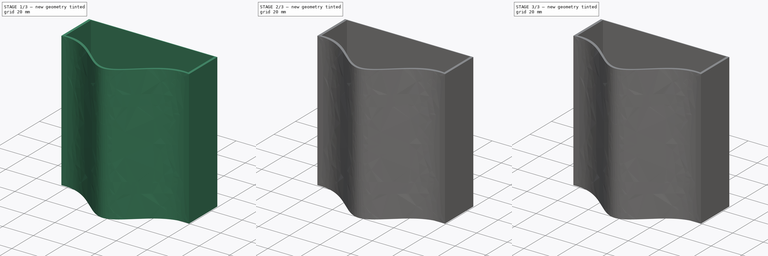
[diagram: build sequence overview — one tinted view per stage of 3, left to right]
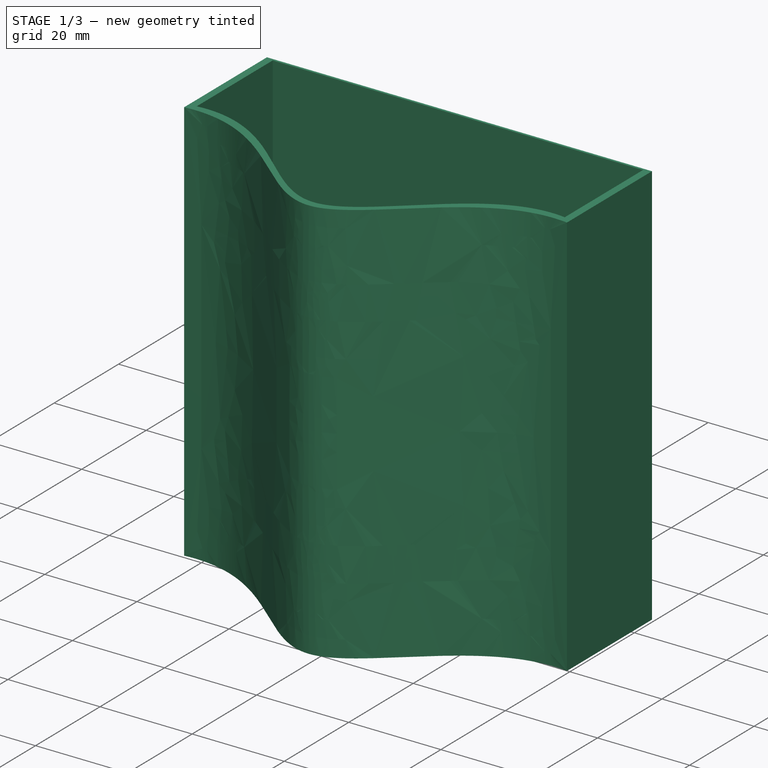
[diagram: stage 1 of 3 — iso view after this stage's code; geometry added in this stage tinted green]
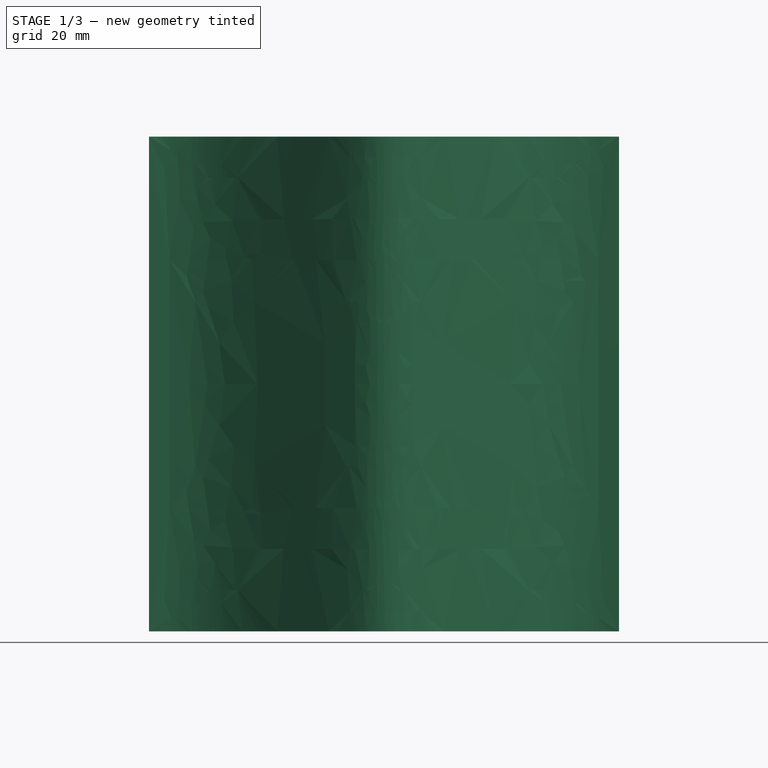
[diagram: stage 1 of 3 — front view after this stage's code; geometry added in this stage tinted green]
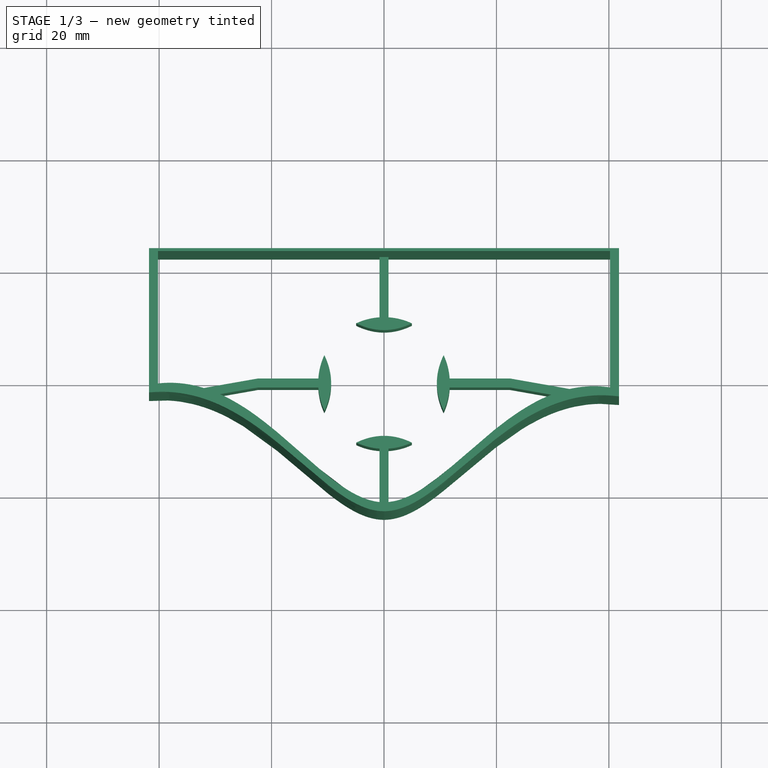
[diagram: stage 1 of 3 — top view after this stage's code; geometry added in this stage tinted green]
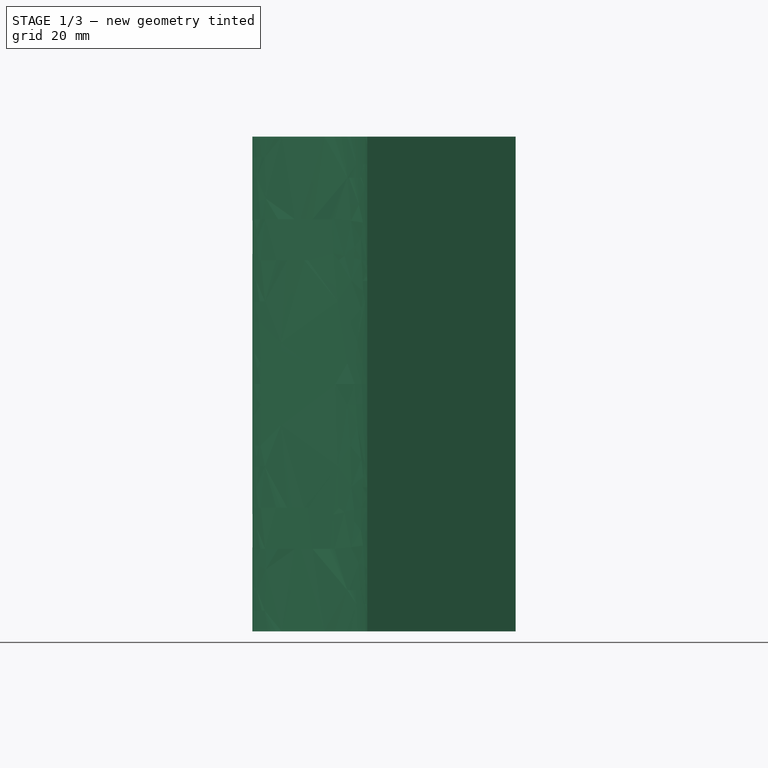
[diagram: stage 1 of 3 — right view after this stage's code; geometry added in this stage tinted green]
FCSTD DOCUMENT  (FreeCAD 0.19R0.19.2)
Label: boatMoterHolder026
License: All rights reserved
LicenseURL: http://en.wikipedia.org/wiki/All_rights_reserved
objects: Part::Chamfer×4, Sketcher::SketchObject×3, Part::Extrusion×3
note: 10 computed .brp shape members not serialized (recipe doc carries the construction recipe); baked Part::Feature solids carry a one-line shape summary decoded from their .brp

FEATURE [Sketcher::SketchObject] Sketch001
  FullyConstrained = true
  sketch-geometry (48):
    g0: ArcOfCircle CenterX=0 CenterY=0 CenterZ=0 NormalX=0 NormalY=0 NormalZ=1 AngleXU=0 Radius=11.7047 StartAngle=1.13417 EndAngle=1.50239
    g1: ArcOfCircle CenterX=0 CenterY=0 CenterZ=0 NormalX=0 NormalY=0 NormalZ=1 AngleXU=0 Radius=11.7047 StartAngle=5.84584 EndAngle=6.21478
    g2: ArcOfCircle CenterX=0 CenterY=0 CenterZ=0 NormalX=0 NormalY=0 NormalZ=1 AngleXU=0 Radius=11.7047 StartAngle=4.27663 EndAngle=4.64399
    g3: ArcOfCircle CenterX=0 CenterY=0 CenterZ=0 NormalX=0 NormalY=0 NormalZ=1 AngleXU=0 Radius=11.7047 StartAngle=2.70497 EndAngle=3.07319
    g4: LineSegment StartX=22.4 StartY=-0.8 StartZ=0 EndX=11.6773 EndY=-0.8 EndZ=0
    g5: LineSegment StartX=22.4 StartY=0.8 StartZ=0 EndX=11.6773 EndY=0.8 EndZ=0
    g6: LineSegment StartX=0.8 StartY=22.4 StartZ=0 EndX=0.8 EndY=11.6773 EndZ=0
    g7: LineSegment StartX=-0.8 StartY=22.4 StartZ=0 EndX=-0.8 EndY=11.6773 EndZ=0
    g8: LineSegment StartX=-22.4 StartY=0.8 StartZ=0 EndX=-11.6773 EndY=0.8 EndZ=0
    g9: LineSegment StartX=-22.4 StartY=-0.8 StartZ=0 EndX=-11.6773 EndY=-0.8 EndZ=0
    g10: ArcOfCircle CenterX=0 CenterY=0 CenterZ=0 NormalX=0 NormalY=0 NormalZ=1 AngleXU=0 Radius=11.7047 StartAngle=3.20999 EndAngle=3.57822
    g11: ArcOfCircle CenterX=0 CenterY=0 CenterZ=0 NormalX=0 NormalY=0 NormalZ=1 AngleXU=0 Radius=11.7047 StartAngle=1.6392 EndAngle=2.00742
    g12: ArcOfCircle CenterX=0 CenterY=0 CenterZ=0 NormalX=0 NormalY=0 NormalZ=1 AngleXU=0 Radius=11.7047 StartAngle=0.0684019 EndAngle=0.436627
    g13: LineSegment StartX=-0.8 StartY=22.4 StartZ=0 EndX=0.8 EndY=22.4 EndZ=0
    g14: LineSegment StartX=0.8 StartY=-22.4 StartZ=0 EndX=0.8 EndY=-11.6773 EndZ=0
    g15: LineSegment StartX=-0.8 StartY=-22.4 StartZ=0 EndX=-0.8 EndY=-11.6773 EndZ=0
    g16: LineSegment StartX=-0.8 StartY=-22.4 StartZ=0 EndX=0.8 EndY=-22.4 EndZ=0
    g17: ArcOfCircle CenterX=0 CenterY=0 CenterZ=0 NormalX=0 NormalY=0 NormalZ=1 AngleXU=0 Radius=11.7047 StartAngle=4.78079 EndAngle=5.14902
    g18: Circle CenterX=-10.6066 CenterY=4.94975 CenterZ=0 NormalX=0 NormalY=0 NormalZ=1 AngleXU=0 Radius=1
    g19: Circle CenterX=-8.2 CenterY=0 CenterZ=0 NormalX=0 NormalY=0 NormalZ=1 AngleXU=0 Radius=1
    g20: Circle CenterX=-10.6066 CenterY=-4.94974 CenterZ=0 NormalX=0 NormalY=0 NormalZ=1 AngleXU=0 Radius=1
    g21: BSplineCurve PolesCount=3 KnotsCount=2 Degree=2 IsPeriodic=0
    g22: GeomPoint X=-10.6066 Y=4.94975 Z=0
    g23: GeomPoint X=-10.6066 Y=-4.94974 Z=0
    g24: Circle CenterX=-4.94974 CenterY=10.6066 CenterZ=0 NormalX=0 NormalY=0 NormalZ=1 AngleXU=0 Radius=1
    g25: Circle CenterX=0 CenterY=8.2 CenterZ=0 NormalX=0 NormalY=0 NormalZ=1 AngleXU=0 Radius=1
    g26: Circle CenterX=4.94975 CenterY=10.6066 CenterZ=0 NormalX=0 NormalY=0 NormalZ=1 AngleXU=0 Radius=1
    g27: BSplineCurve PolesCount=3 KnotsCount=2 Degree=2 IsPeriodic=0
    g28: GeomPoint X=-4.94974 Y=10.6066 Z=0
    g29: GeomPoint X=4.94975 Y=10.6066 Z=0
    g30: Circle CenterX=10.6066 CenterY=4.94975 CenterZ=0 NormalX=0 NormalY=0 NormalZ=1 AngleXU=0 Radius=1
    g31: Circle CenterX=8.2 CenterY=0 CenterZ=0 NormalX=0 NormalY=0 NormalZ=1 AngleXU=0 Radius=1
    g32: Circle CenterX=10.603 CenterY=-4.95737 CenterZ=0 NormalX=0 NormalY=0 NormalZ=1 AngleXU=0 Radius=1
    g33: BSplineCurve PolesCount=3 KnotsCount=2 Degree=2 IsPeriodic=0
    g34: GeomPoint X=10.6066 Y=4.94975 Z=0
    g35: GeomPoint X=10.603 Y=-4.95737 Z=0
    g36: Circle CenterX=4.94975 CenterY=-10.6066 CenterZ=0 NormalX=0 NormalY=0 NormalZ=1 AngleXU=0 Radius=1
    g37: Circle CenterX=0 CenterY=-8.2 CenterZ=0 NormalX=0 NormalY=0 NormalZ=1 AngleXU=0 Radius=1
    g38: Circle CenterX=-4.94053 CenterY=-10.6109 CenterZ=0 NormalX=0 NormalY=0 NormalZ=1 AngleXU=0 Radius=1
    g39: BSplineCurve PolesCount=3 KnotsCount=2 Degree=2 IsPeriodic=0
    g40: GeomPoint X=4.94975 Y=-10.6066 Z=0
    g41: GeomPoint X=-4.94053 Y=-10.6109 Z=0
    g42: LineSegment StartX=36.3923 StartY=-3.26723 StartZ=0 EndX=22.4 EndY=-0.8 EndZ=0
    g43: LineSegment StartX=37.1116 StartY=-1.79405 StartZ=0 EndX=22.4 EndY=0.8 EndZ=0
    g44: LineSegment StartX=37.1116 StartY=-1.79405 StartZ=0 EndX=36.3923 EndY=-3.26723 EndZ=0
    g45: LineSegment StartX=-22.4 StartY=0.8 StartZ=0 EndX=-38.0661 EndY=-1.96236 EndZ=0
    g46: LineSegment StartX=-22.4 StartY=-0.8 StartZ=0 EndX=-33.093 EndY=-2.68547 EndZ=0
    g47: LineSegment StartX=-38.0661 StartY=-1.96236 StartZ=0 EndX=-33.093 EndY=-2.68547 EndZ=0
  constraints (114):
    c: Coincident(g0,g-1)
    c: Coincident(g1,g0)
    c: Coincident(g2,g0)
    c: Coincident(g3,g0)
    c: Block(g1)
    c: Block(g0)
    c: Block(g3)
    c: Block(g2)
    c: Horizontal(g4)
    c: Horizontal(g5)
    c: Vertical(g6)
    c: Vertical(g7)
    c: Horizontal(g8)
    c: Horizontal(g9)
    c: Block(g9)
    c: Block(g8)
    c: Block(g7)
    c: Block(g6)
    c: Block(g5)
    c: Block(g4)
    c: Equal(g3,g10)
    c: Coincident(g3,g8)
    c: Coincident(g10,g9)
    c: Coincident(g3,g10)
    c: Equal(g0,g11)
    c: Coincident(g0,g6)
    c: Coincident(g11,g7)
    c: Coincident(g0,g11)
    c: Equal(g1,g12)
    c: Coincident(g1,g4)
    c: PointOnObject(g12,g5)
    c: Coincident(g1,g12)
    c: Coincident(g13,g7)
    c: Coincident(g13,g6)
    c: Horizontal(g13)
    c: Distance(g13) = 1.6
    c: Vertical(g14)
    c: Vertical(g15)
    c: Block(g14)
    c: Block(g15)
    c: Coincident(g16,g15)
    c: Coincident(g16,g14)
    c: Horizontal(g16)
    c: Equal(g2,g17)
    c: Coincident(g2,g15)
    c: Coincident(g17,g14)
    c: Coincident(g2,g17)
    c: Block(g10)
    c: Block(g11)
    c: Block(g12)
    c: Block(g17)
    c: PointOnObject(g19,g-1)
    c: PointOnObject(g31,g-1)
    c: PointOnObject(g37,g-2)
    c: Coincident(g21,g3)
    c: Weight(g18) = 1
    c: Equal(g18,g19)
    c: Equal(g18,g20)
    c: Coincident(g21,g10)
    c: InternalAlignment(g18,g21)
    c: InternalAlignment(g19,g21)
    c: InternalAlignment(g20,g21)
    c: InternalAlignment(g22,g21)
    c: InternalAlignment(g23,g21)
    c: Coincident(g27,g11)
    c: Weight(g24) = 1
    c: Equal(g24,g25)
    c: Equal(g24,g26)
    c: Coincident(g27,g0)
    c: InternalAlignment(g24,g27)
    c: InternalAlignment(g25,g27)
    c: InternalAlignment(g26,g27)
    c: InternalAlignment(g28,g27)
    c: InternalAlignment(g29,g27)
    c: Coincident(g33,g12)
    c: Weight(g30) = 1
    c: Equal(g30,g31)
    c: Equal(g30,g32)
    c: Coincident(g33,g1)
    c: InternalAlignment(g30,g33)
    c: InternalAlignment(g31,g33)
    c: InternalAlignment(g32,g33)
    c: InternalAlignment(g34,g33)
    c: InternalAlignment(g35,g33)
    c: Coincident(g39,g17)
    c: Weight(g36) = 1
    c: Equal(g36,g37)
    c: Equal(g36,g38)
    c: Coincident(g39,g2)
    c: InternalAlignment(g36,g39)
    c: InternalAlignment(g37,g39)
    c: InternalAlignment(g38,g39)
    c: InternalAlignment(g40,g39)
    c: InternalAlignment(g41,g39)
    c: Block(g27)
    c: Block(g21)
    c: Block(g33)
    c: Block(g39)
    c: Angle(g-1,g42) = 2.96706
    c: Coincident(g42,g4)
    c: Coincident(g43,g5)
    c: Parallel(g43,g42)
    c: Coincident(g44,g43)
    c: Coincident(g44,g42)
    c: Block(g43)
    c: Block(g42)
    c: Angle(g-1,g45) = 3.31613
    c: Coincident(g45,g8)
    c: Coincident(g46,g9)
    c: Block(g45)
    c: Parallel(g46,g45)
    c: Coincident(g47,g45)
    c: Coincident(g47,g46)
    c: Block(g46)
FEATURE [Part::Extrusion] Extrude001
  Base = -> Sketch001
  Dir = (0,0,1)
  DirMode = 2
  FaceMakerClass = Part::FaceMakerBullseye
  LengthFwd = 26
  LengthRev = 0
  Solid = true
  Symmetric = false
FEATURE [Sketcher::SketchObject] Sketch002
  FullyConstrained = true
  sketch-geometry (27):
    g0: LineSegment StartX=1.5e-15 StartY=22.4 StartZ=0 EndX=40.2 EndY=22.4 EndZ=0
    g1: LineSegment StartX=1.5e-15 StartY=22.4 StartZ=0 EndX=-40.2 EndY=22.4 EndZ=0
    g2: LineSegment StartX=41.8 StartY=22.9 StartZ=0 EndX=-41.8 EndY=22.9 EndZ=0
    g3: LineSegment StartX=41.8 StartY=22.9 StartZ=0 EndX=41.8 EndY=-1.87726 EndZ=0
    g4: LineSegment StartX=-41.8 StartY=22.9 StartZ=0 EndX=-41.8 EndY=-1.16355 EndZ=0
    g5-g9: Circle x5 (B-spline internal-alignment scaffolding for g10; pole/knot coordinates omitted)
    g10: BSplineCurve PolesCount=5 KnotsCount=3 Degree=3 IsPeriodic=0
    g11: GeomPoint X=-40.2 Y=-1.16355 Z=0
    g12: GeomPoint X=0 Y=-22.3 Z=0
    g13: GeomPoint X=40.2 Y=-1.87726 Z=0
    g14: LineSegment StartX=-41.8 StartY=-1.16355 StartZ=0 EndX=-41.8 EndY=-2.76355 EndZ=0
    g15: LineSegment StartX=41.8 StartY=-1.87726 StartZ=0 EndX=41.8 EndY=-3.47726 EndZ=0
    g16-g20: Circle x5 (B-spline internal-alignment scaffolding for g21; pole/knot coordinates omitted)
    g21: BSplineCurve PolesCount=5 KnotsCount=3 Degree=3 IsPeriodic=0
    g22: GeomPoint X=-41.8 Y=-2.76355 Z=0
    g23: GeomPoint X=0 Y=-23.9 Z=0
    g24: GeomPoint X=41.8 Y=-3.47726 Z=0
    g25: LineSegment StartX=-40.2 StartY=-1.16355 StartZ=0 EndX=-40.2 EndY=22.4 EndZ=0
    g26: LineSegment StartX=40.2 StartY=-1.87726 StartZ=0 EndX=40.2 EndY=22.4 EndZ=0
  constraints (48):
    c: Horizontal(g0)
    c: Coincident(g1,g0)
    c: Horizontal(g1)
    c: Block(g0)
    c: Block(g1)
    c: Horizontal(g2)
    c: Block(g2)
    c: Coincident(g3,g2)
    c: Vertical(g3)
    c: Coincident(g4,g2)
    c: Vertical(g4)
    c: Weight(g5) = 1
    c: Equal(g5, g6-g9) x4
    c: InternalAlignment(g5-g9 -> g10) x5
    c: InternalAlignment(g11,g10)
    c: InternalAlignment(g12,g10)
    c: InternalAlignment(g13,g10)
    c: Coincident(g14,g4)
    c: Vertical(g14)
    c: Distance(g14) = 1.6
    c: PointOnObject(g18,g-2)
    c: Coincident(g15,g3)
    c: Vertical(g15)
    c: Distance(g15) = 1.6
    c: Coincident(g21,g14)
    c: Weight(g16) = 1
    c: Equal(g16, g17-g20) x4
    c: Coincident(g21,g15)
    c: InternalAlignment(g16-g20 -> g21) x5
    c: InternalAlignment(g22,g21)
    c: InternalAlignment(g23,g21)
    c: InternalAlignment(g24,g21)
    c: Block(g16)
    c: Block(g5)
    c: Block(g6)
    c: Block(g17)
    c: Block(g7)
    c: Block(g18)
    c: Block(g19)
    c: Block(g8)
    c: Block(g9)
    c: Block(g20)
    c: Coincident(g25,g10)
    c: Vertical(g25)
    c: Coincident(g26,g10)
    c: Vertical(g26)
    c: Coincident(g0,g26)
    c: Coincident(g1,g25)
FEATURE [Part::Extrusion] Extrude002
  Base = -> Sketch002
  Dir = (0,0,1)
  DirMode = 2
  FaceMakerClass = Part::FaceMakerBullseye
  LengthFwd = 88
  LengthRev = 0
  Solid = true
  Symmetric = false
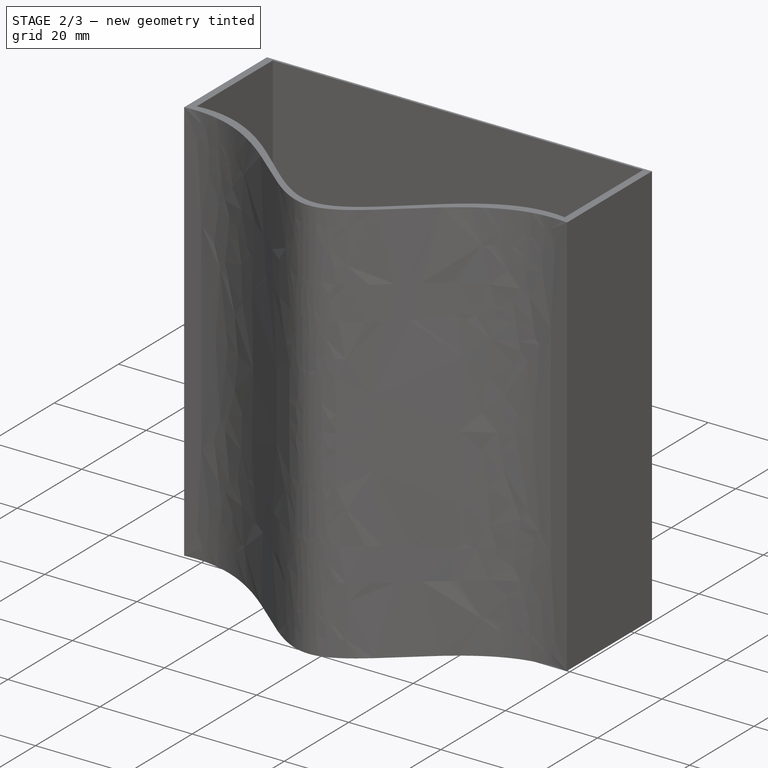
[diagram: stage 2 of 3 — iso view after this stage's code; geometry added in this stage tinted green]
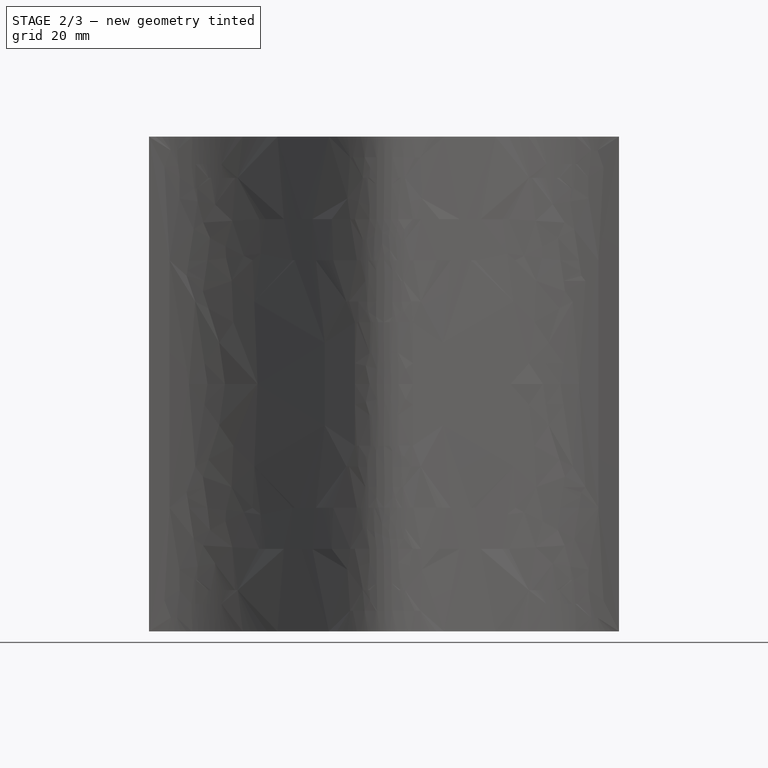
[diagram: stage 2 of 3 — front view after this stage's code; geometry added in this stage tinted green]
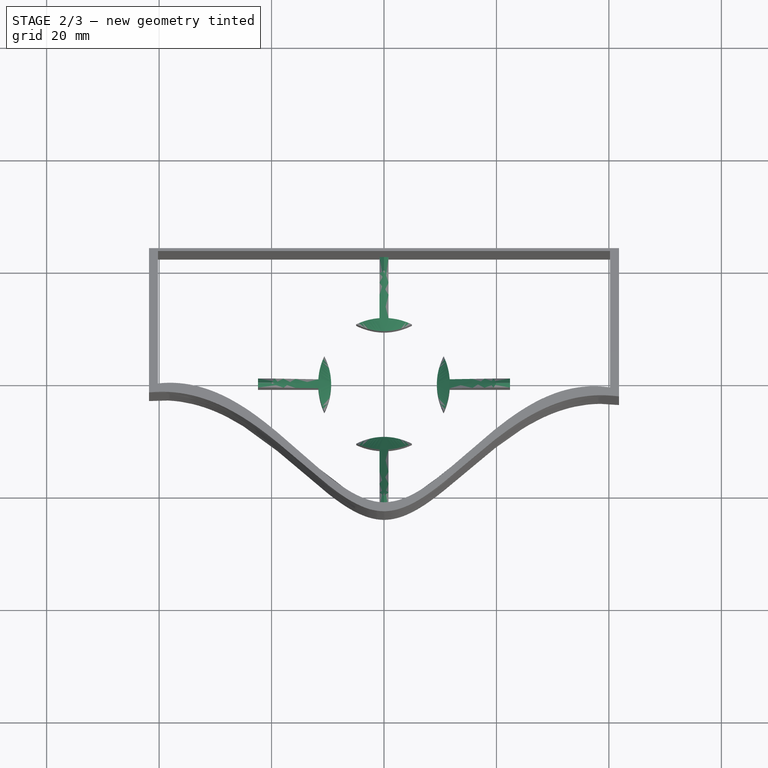
[diagram: stage 2 of 3 — top view after this stage's code; geometry added in this stage tinted green]
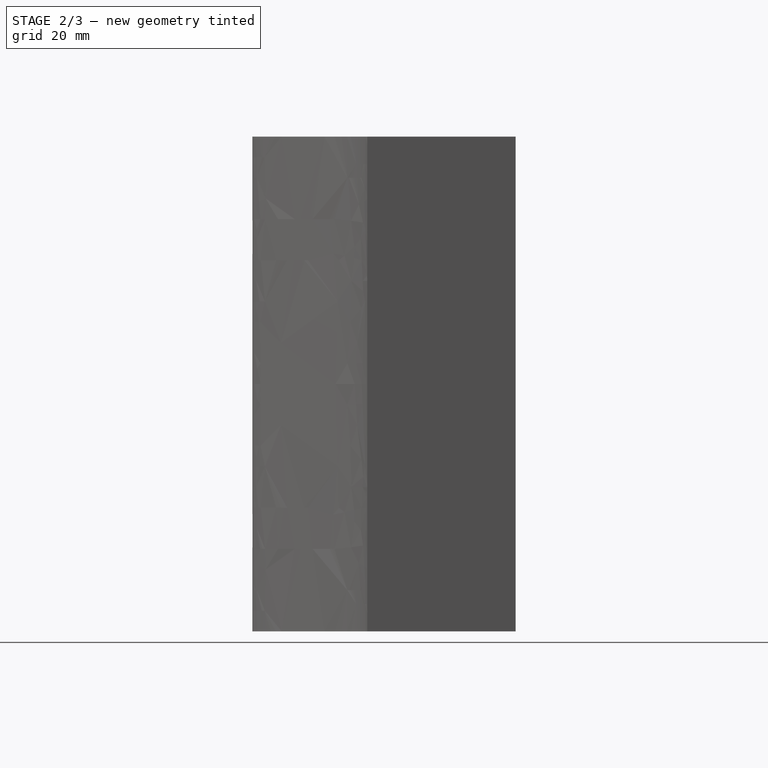
[diagram: stage 2 of 3 — right view after this stage's code; geometry added in this stage tinted green]
FEATURE [Part::Chamfer] Chamfer
  Base = -> Extrude001
  Edges = 4 edges r=10.6: [Edge18,Edge36,Edge46,Edge72]
FEATURE [Part::Chamfer] Chamfer001
  Base = -> Chamfer
  Edges = 8 edges r=0.79: [Edge16,Edge19,Edge37,Edge41,Edge46,Edge60,Edge79,Edge82]
FEATURE [Part::Chamfer] Chamfer003
  Base = -> Chamfer001
  Edges = 8 edges r=0.79: [Edge12,Edge26,Edge39,Edge53,Edge59,Edge77,Edge93,Edge107]
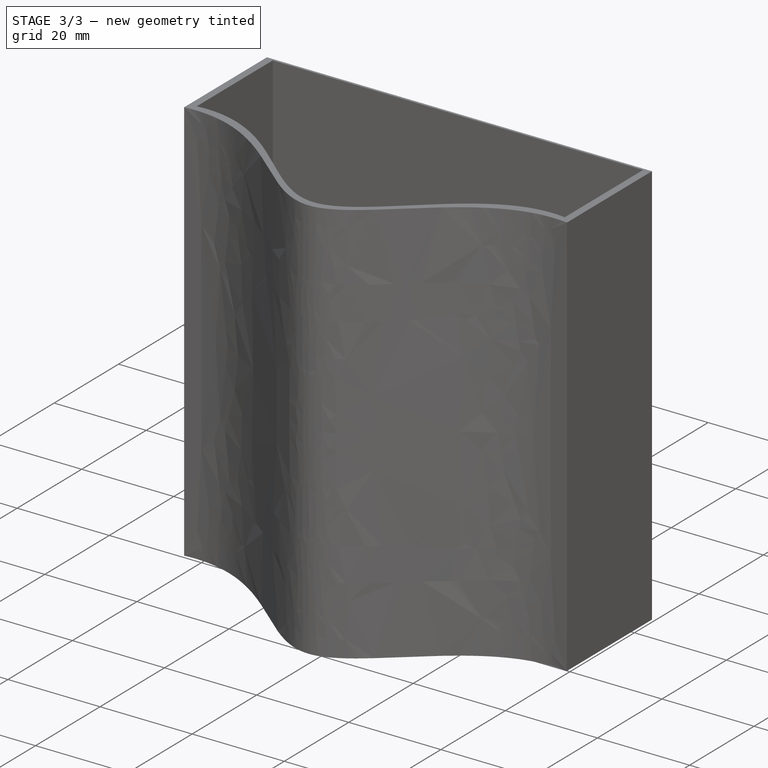
[diagram: stage 3 of 3 — iso view after this stage's code; geometry added in this stage tinted green]
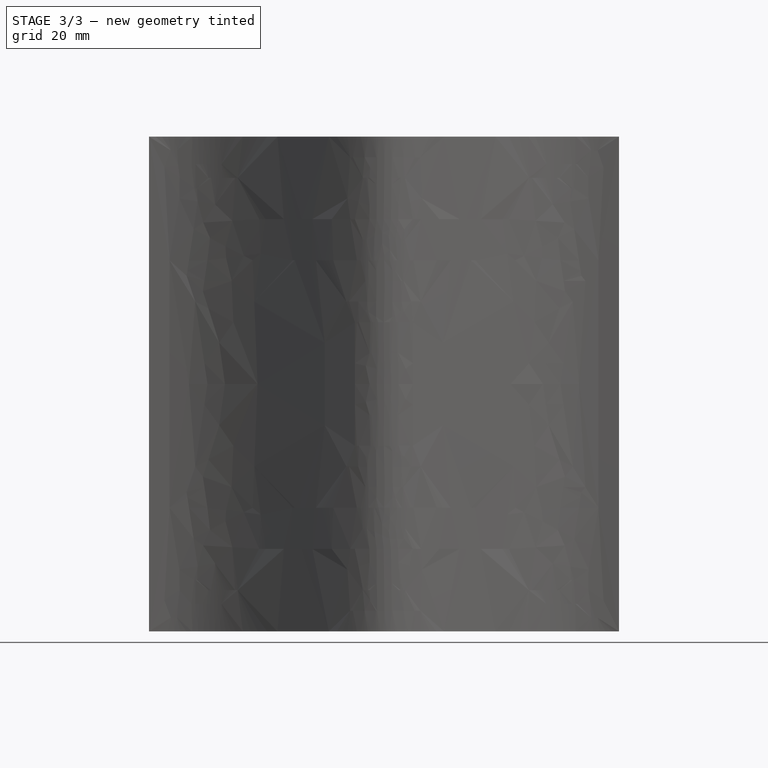
[diagram: stage 3 of 3 — front view after this stage's code; geometry added in this stage tinted green]
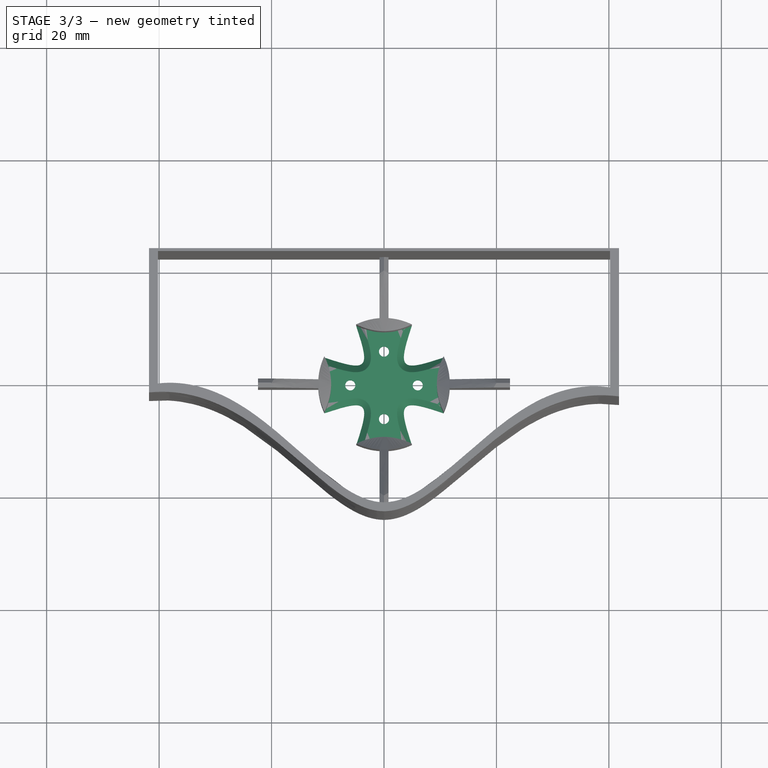
[diagram: stage 3 of 3 — top view after this stage's code; geometry added in this stage tinted green]
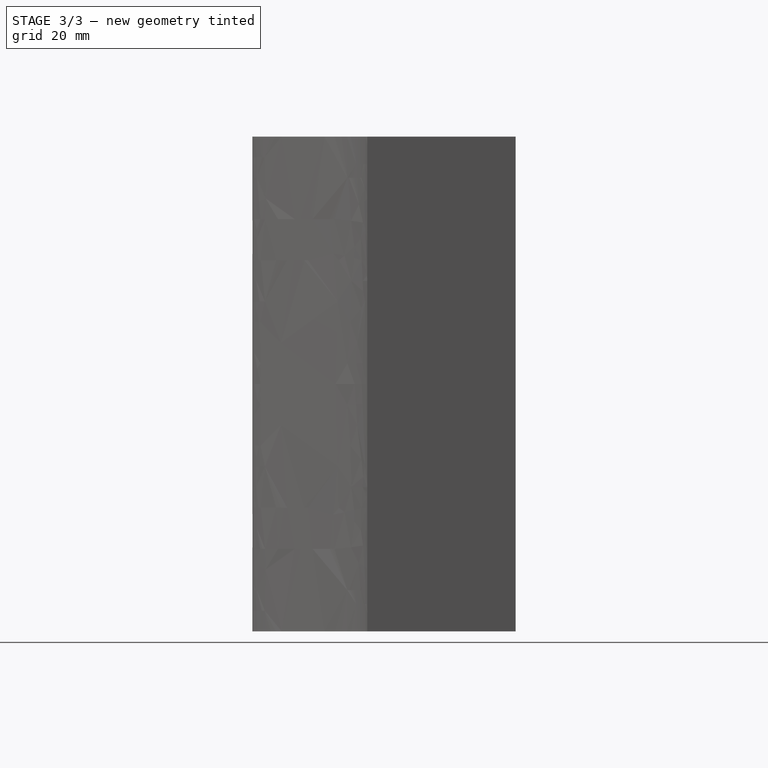
[diagram: stage 3 of 3 — right view after this stage's code; geometry added in this stage tinted green]
FEATURE [Sketcher::SketchObject] Sketch
  FullyConstrained = true
  sketch-geometry (44):
    g0: Circle CenterX=-6 CenterY=0 CenterZ=0 NormalX=0 NormalY=0 NormalZ=1 AngleXU=0 Radius=0.9
    g1: Circle CenterX=0 CenterY=6 CenterZ=0 NormalX=0 NormalY=0 NormalZ=1 AngleXU=0 Radius=0.9
    g2: Circle CenterX=6 CenterY=0 CenterZ=0 NormalX=0 NormalY=0 NormalZ=1 AngleXU=0 Radius=0.9
    g3: Circle CenterX=0 CenterY=-6 CenterZ=0 NormalX=0 NormalY=0 NormalZ=1 AngleXU=0 Radius=0.9
    g4-g8: Circle x5 (B-spline internal-alignment scaffolding for g9; pole/knot coordinates omitted)
    g9: BSplineCurve PolesCount=5 KnotsCount=3 Degree=3 IsPeriodic=0
    g10: GeomPoint X=-4.94974 Y=10.6066 Z=0
    g11: GeomPoint X=-3.88908 Y=3.88909 Z=0
    g12: GeomPoint X=-10.6066 Y=4.94975 Z=0
    g13-g17: Circle x5 (B-spline internal-alignment scaffolding for g18; pole/knot coordinates omitted)
    g18: BSplineCurve PolesCount=5 KnotsCount=3 Degree=3 IsPeriodic=0
    g19: GeomPoint X=-10.6066 Y=-4.94974 Z=0
    g20: GeomPoint X=-3.88212 Y=-3.88197 Z=0
    g21: GeomPoint X=-4.94053 Y=-10.6109 Z=0
    g22-g26: Circle x5 (B-spline internal-alignment scaffolding for g27; pole/knot coordinates omitted)
    g27: BSplineCurve PolesCount=5 KnotsCount=3 Degree=3 IsPeriodic=0
    g28: GeomPoint X=4.94975 Y=-10.6066 Z=0
    g29: GeomPoint X=3.8852 Y=-3.88525 Z=0
    g30: GeomPoint X=10.603 Y=-4.95737 Z=0
    g31-g35: Circle x5 (B-spline internal-alignment scaffolding for g36; pole/knot coordinates omitted)
    g36: BSplineCurve PolesCount=5 KnotsCount=3 Degree=3 IsPeriodic=0
    g37: GeomPoint X=10.6066 Y=4.94975 Z=0
    g38: GeomPoint X=3.8891 Y=3.88908 Z=0
    g39: GeomPoint X=4.94975 Y=10.6066 Z=0
    g40: ArcOfCircle CenterX=0 CenterY=0 CenterZ=0 NormalX=0 NormalY=0 NormalZ=1 AngleXU=0 Radius=11.7047 StartAngle=1.13417 EndAngle=2.00742
    g41: ArcOfCircle CenterX=0 CenterY=0 CenterZ=0 NormalX=0 NormalY=0 NormalZ=1 AngleXU=0 Radius=11.7047 StartAngle=5.84584 EndAngle=6.71981
    g42: ArcOfCircle CenterX=0 CenterY=0 CenterZ=0 NormalX=0 NormalY=0 NormalZ=1 AngleXU=0 Radius=11.7047 StartAngle=4.27663 EndAngle=5.14902
    g43: ArcOfCircle CenterX=0 CenterY=0 CenterZ=0 NormalX=0 NormalY=0 NormalZ=1 AngleXU=0 Radius=11.7047 StartAngle=2.70497 EndAngle=3.57822
  constraints (50):
    c: Block(g1)
    c: Block(g2)
    c: Block(g3)
    c: Block(g0)
    c: Weight(g4) = 1
    c: Equal(g4, g5-g8) x4
    c: InternalAlignment(g4-g8 -> g9) x5
    c: InternalAlignment(g10,g9)
    c: InternalAlignment(g11,g9)
    c: InternalAlignment(g12,g9)
    c: Weight(g13) = 1
    c: Equal(g13, g14-g17) x4
    c: InternalAlignment(g13-g17 -> g18) x5
    c: InternalAlignment(g19,g18)
    c: InternalAlignment(g20,g18)
    c: InternalAlignment(g21,g18)
    c: Weight(g22) = 1
    c: Equal(g22,g24)
    c: Equal(g22,g25)
    c: Equal(g22,g26)
    c: InternalAlignment(g22-g26 -> g27) x5
    c: InternalAlignment(g28,g27)
    c: InternalAlignment(g29,g27)
    c: InternalAlignment(g30,g27)
    c: Weight(g31) = 1
    c: Equal(g31, g32-g35) x4
    c: InternalAlignment(g31-g35 -> g36) x5
    c: InternalAlignment(g37,g36)
    c: InternalAlignment(g38,g36)
    c: InternalAlignment(g39,g36)
    c: Coincident(g40,g-1)
    c: Coincident(g40,g9)
    c: Coincident(g40,g36)
    c: Coincident(g41,g40)
    c: Coincident(g41,g36)
    c: Coincident(g41,g27)
    c: Coincident(g42,g40)
    c: Coincident(g42,g27)
    c: Coincident(g42,g18)
    c: Coincident(g43,g40)
    c: Coincident(g43,g18)
    c: Coincident(g43,g9)
    c: Block(g41)
    c: Block(g40)
    c: Block(g43)
    c: Block(g42)
    c: Block(g36)
    c: Block(g9)
    c: Block(g27)
    c: Block(g18)
FEATURE [Part::Extrusion] Extrude
  Base = -> Sketch
  Dir = (0,0,1)
  DirMode = 2
  FaceMakerClass = Part::FaceMakerBullseye
  LengthFwd = 2
  LengthRev = 0
  Solid = true
  Symmetric = false
FEATURE [Part::Chamfer] Chamfer002
  Base = -> Extrude
  Edges = 4 edges r=1.2: [Edge4,Edge10,Edge16,Edge22]
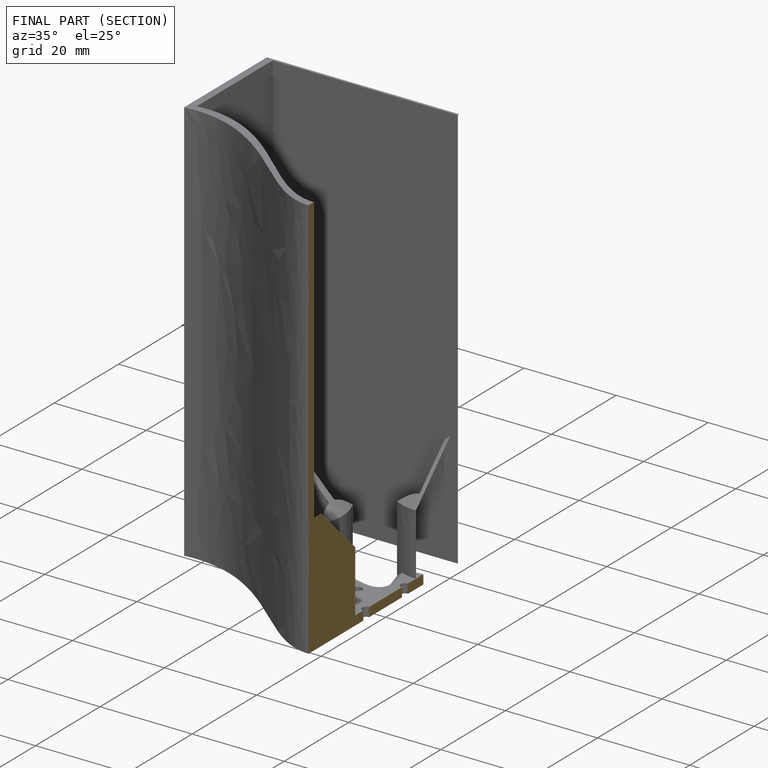
[diagram: finished part — half-section view (interior)]
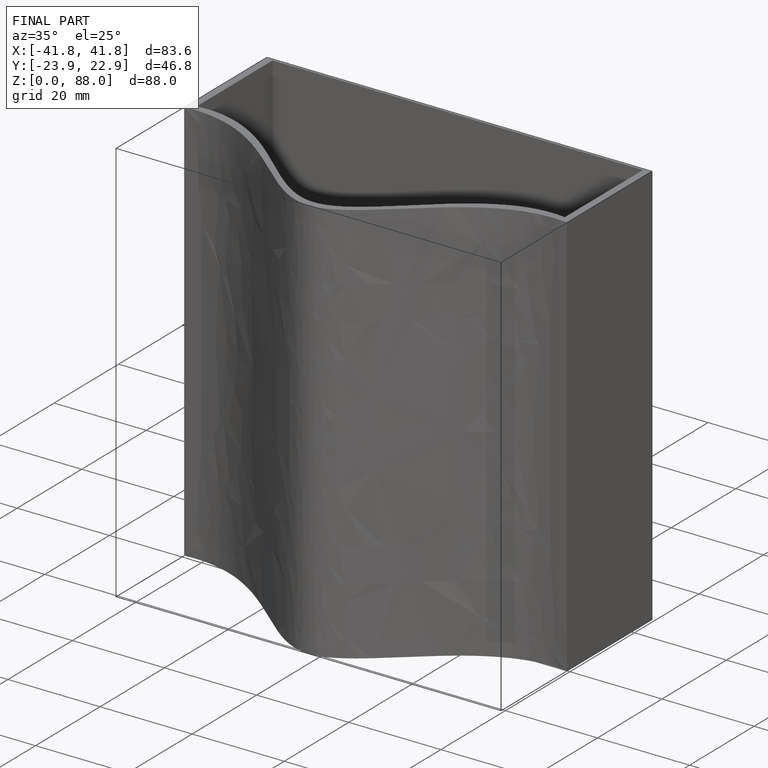
[diagram: finished part — iso view with bounding-box wireframe]
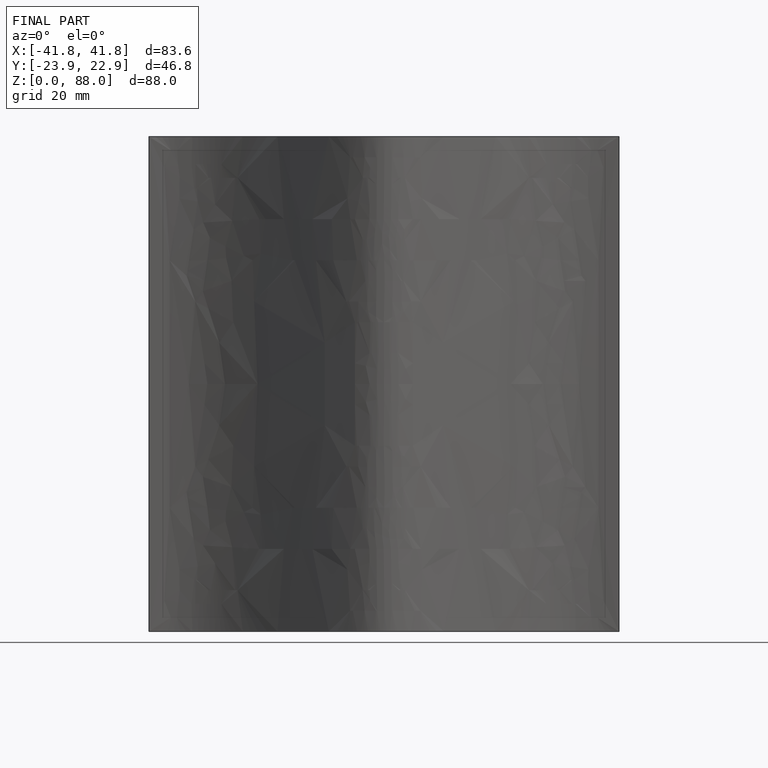
[diagram: finished part — front view with bounding-box wireframe]
